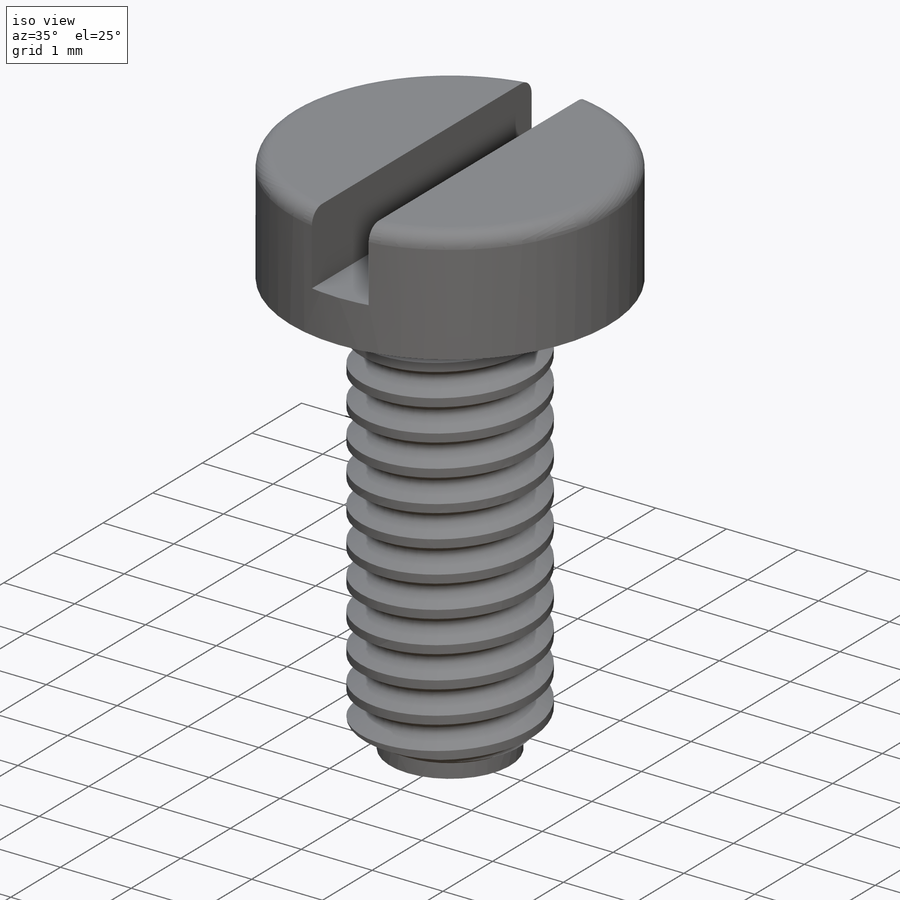
[diagram: iso view]
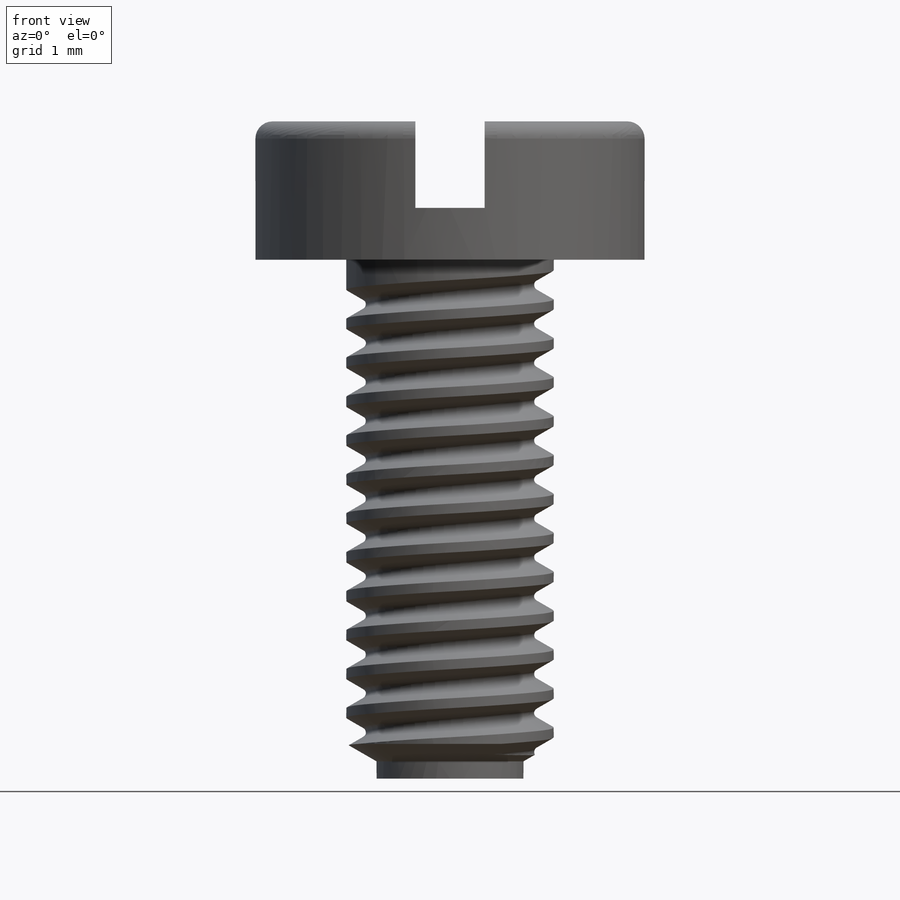
[diagram: front view]
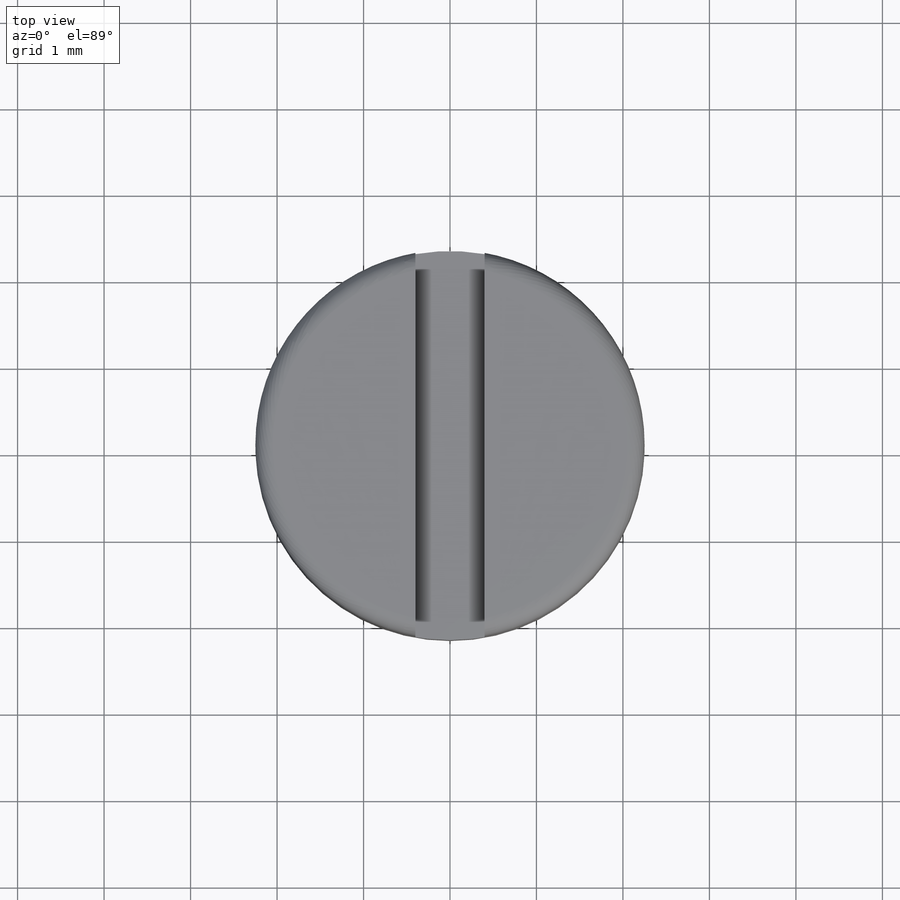
[diagram: top view]
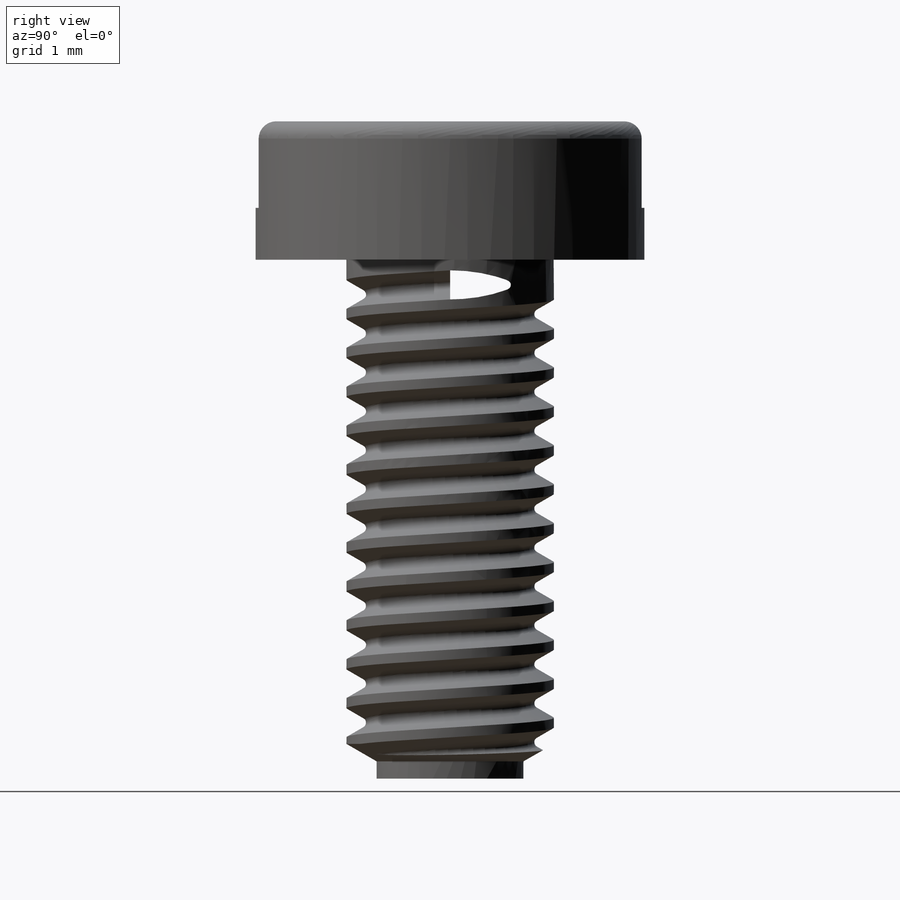
[diagram: right view]
SOLIDWORKS PART (.sldprt)
format: sldprt  version: not decoded by parser v0  size: 941,568 bytes
history: native  units: mm
features: sketch x5, cut_extrude x2, material x1, revolve x1, helix x1, sweep x1 + 2 further entries (+12 scaffold rows collapsed)
feature tree (25):
  scaffold x12  (default folders/planes/origin — collapsed)
  material  "PA Type 6"
  "Y-Axis"
  "Z-Axis"
  sketch  "Sketch1"  dims[c1.D7=0.2mm c1.D1=2.4mm c1.D2=1.7mm c1.D3=0.2mm c1.D4=1.5mm c2.D4=60.0deg c2.D5=6.0mm c2.D6=1.6mm c2.D8=4.5mm c2.D9=0.8mm c2.D10=1.0mm]
  revolve  "Revolve1"  Angle=360deg
  sketch  "Sketch2"
  cut_extrude  "Cut-Extrude1"  [1 undecoded]
  sketch  "Sketch3"  dims[D1=2.5mm]
  helix  "Helix/Spiral1"  Pitch=5.5125mm
  sketch  "Sketch4"  dims[c1.D2=0.06mm c1.D1=~0.404874mm c2.D1=60.0deg c2.D3=0.44mm c2.D2=0.1125mm c3.D3=~0.05625mm c3.D4=0.45mm]
  sweep  "Cut-Sweep1"
  sketch  "Sketch5"  dims[D1=0.0mm]
  cut_extrude  "Cut-Extrude2"  Depth=2mm
decode coverage: 7 of 10 modeling features carry decoded parameters; 2 rows unclassified (native names shown)
note: ~ marks probable driven/reference dimensions
note: 1 parameter value undecoded
note: suppression state not decoded; provenance and decode notes live in map.json
